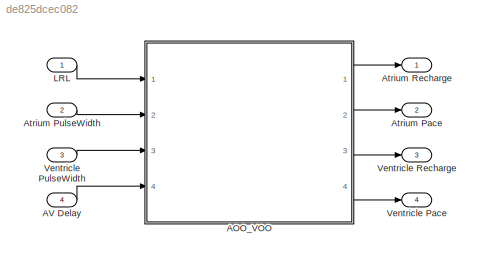
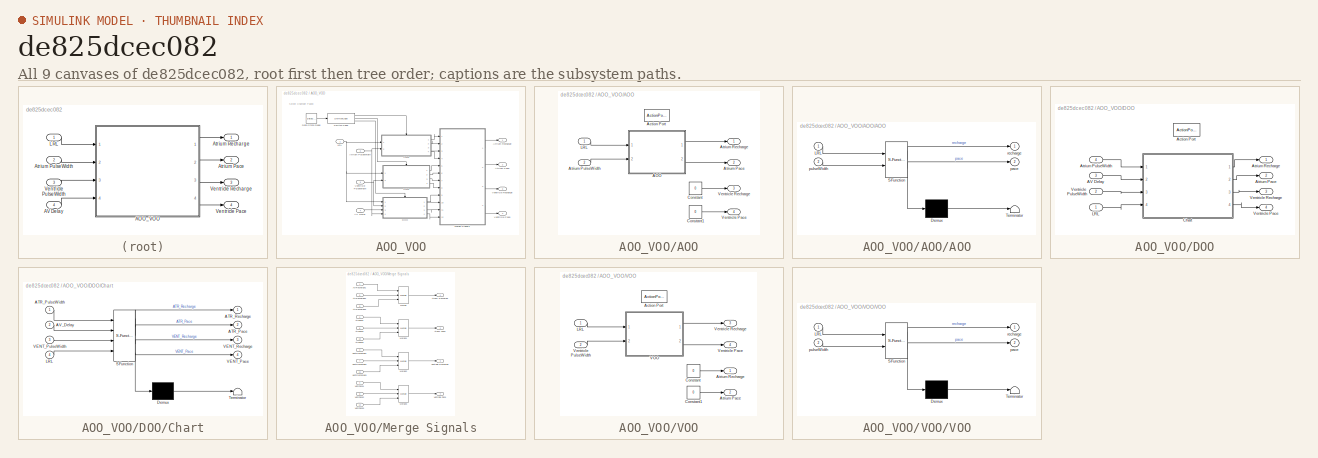
[diagram: thumbnail index - all 9 canvases of the model, root first then tree order]
MODEL slx_de825dcec082
KIND model
CONFIG AbsTol = auto
CONFIG EnableMultiTasking = on
CONFIG FixedStep = 1e-3
CONFIG MaxStep = auto
CONFIG MinStep = auto
CONFIG RelTol = 1e-3
CONFIG SampleTimeConstraint = Unconstrained
CONFIG Solver = FixedStepAuto
CONFIG SolverName = FixedStepAuto
CONFIG StartTime = 0.0
CONFIG StopTime = 10.0
BLOCK [SubSystem] AOO_VOO
  Ports = [4, 4]
  RequestExecContextInheritance = off
BLOCK [SubSystem] AOO_VOO/AOO
  Ports = [2, 4, 0, 0, 0, 0, 0, 1]
  RequestExecContextInheritance = off
  VariantControl = ATR_PACING
BLOCK [SubSystem] AOO_VOO/AOO/AOO
  ErrorFcn = Stateflow.Translate.translate
  PermitHierarchicalResolution = ExplicitOnly
  Ports = [2, 2]
  RequestExecContextInheritance = off
  SFBlockType = Chart
  TreatAsAtomicUnit = on
BLOCK [Demux] AOO_VOO/AOO/AOO/ Demux 
  Outputs = 1
  Ports = [1, 1]
BLOCK [S-Function] AOO_VOO/AOO/AOO/ SFunction 
  EnableBusSupport = on
  FunctionName = sf_sfun
  PortCounts = [2 3]
  Ports = [2, 3]
  SFcnIsStateOwnerBlock = off
  SFunctionDeploymentMode = off
  Tag = Stateflow S-Function 4
BLOCK [Terminator] AOO_VOO/AOO/AOO/ Terminator 
BLOCK [Inport] AOO_VOO/AOO/AOO/LRL
BLOCK [Outport] AOO_VOO/AOO/AOO/pace
  Port = 2
BLOCK [Inport] AOO_VOO/AOO/AOO/pulseWidth
  Port = 2
BLOCK [Outport] AOO_VOO/AOO/AOO/recharge
BLOCK [ActionPort] AOO_VOO/AOO/Action Port
  ActionPortLabel = case [ 1 ]:
BLOCK [Outport] AOO_VOO/AOO/Atrium Pace
  Port = 2
BLOCK [Inport] AOO_VOO/AOO/Atrium PulseWidth
  Port = 2
BLOCK [Outport] AOO_VOO/AOO/Atrium Recharge
BLOCK [Constant] AOO_VOO/AOO/Constant
  Value = 0
BLOCK [Constant] AOO_VOO/AOO/Constant1
  OutDataTypeStr = boolean
  Value = 0
BLOCK [Inport] AOO_VOO/AOO/LRL
BLOCK [Outport] AOO_VOO/AOO/Ventricle Pace
  Port = 4
BLOCK [Outport] AOO_VOO/AOO/Ventricle Recharge
  Port = 3
BLOCK [Inport] AOO_VOO/AV Delay
  Port = 4
BLOCK [Outport] AOO_VOO/Atrium Pace
  Port = 2
BLOCK [Inport] AOO_VOO/Atrium PulseWidth
  Port = 2
BLOCK [Outport] AOO_VOO/Atrium Recharge
BLOCK [SubSystem] AOO_VOO/DOO
  Ports = [4, 4, 0, 0, 0, 0, 0, 1]
  RequestExecContextInheritance = off
  VariantControl = DUAL_PACING
BLOCK [Inport] AOO_VOO/DOO/AV Delay
  Port = 3
BLOCK [ActionPort] AOO_VOO/DOO/Action Port
  ActionPortLabel = case [ 3 ]:
BLOCK [Outport] AOO_VOO/DOO/Atrium Pace
  Port = 2
BLOCK [Inport] AOO_VOO/DOO/Atrium PulseWidth
  Port = 4
BLOCK [Outport] AOO_VOO/DOO/Atrium Recharge
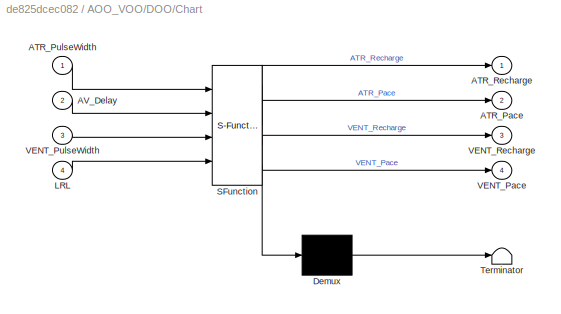
BLOCK [SubSystem] AOO_VOO/DOO/Chart
  ErrorFcn = Stateflow.Translate.translate
  PermitHierarchicalResolution = ExplicitOnly
  Ports = [4, 4]
  RequestExecContextInheritance = off
  SFBlockType = Chart
  TreatAsAtomicUnit = on
BLOCK [Demux] AOO_VOO/DOO/Chart/ Demux 
  Outputs = 1
  Ports = [1, 1]
BLOCK [S-Function] AOO_VOO/DOO/Chart/ SFunction 
  EnableBusSupport = on
  FunctionName = sf_sfun
  PortCounts = [4 5]
  Ports = [4, 5]
  SFcnIsStateOwnerBlock = off
  SFunctionDeploymentMode = off
  Tag = Stateflow S-Function 5
BLOCK [Terminator] AOO_VOO/DOO/Chart/ Terminator 
BLOCK [Outport] AOO_VOO/DOO/Chart/ATR_Pace
  Port = 2
BLOCK [Inport] AOO_VOO/DOO/Chart/ATR_PulseWidth
BLOCK [Outport] AOO_VOO/DOO/Chart/ATR_Recharge
BLOCK [Inport] AOO_VOO/DOO/Chart/AV_Delay
  Port = 2
BLOCK [Inport] AOO_VOO/DOO/Chart/LRL
  Port = 4
BLOCK [Outport] AOO_VOO/DOO/Chart/VENT_Pace
  Port = 4
BLOCK [Inport] AOO_VOO/DOO/Chart/VENT_PulseWidth
  Port = 3
BLOCK [Outport] AOO_VOO/DOO/Chart/VENT_Recharge
  Port = 3
BLOCK [Inport] AOO_VOO/DOO/LRL
BLOCK [Outport] AOO_VOO/DOO/Ventricle Pace
  Port = 4
BLOCK [Inport] AOO_VOO/DOO/Ventricle PulseWidth
  Port = 2
BLOCK [Outport] AOO_VOO/DOO/Ventricle Recharge
  Port = 3
BLOCK [DataStoreRead] AOO_VOO/Data Store Read
  DataStoreName = Paced
  Ports = [0, 1]
BLOCK [Inport] AOO_VOO/LRL
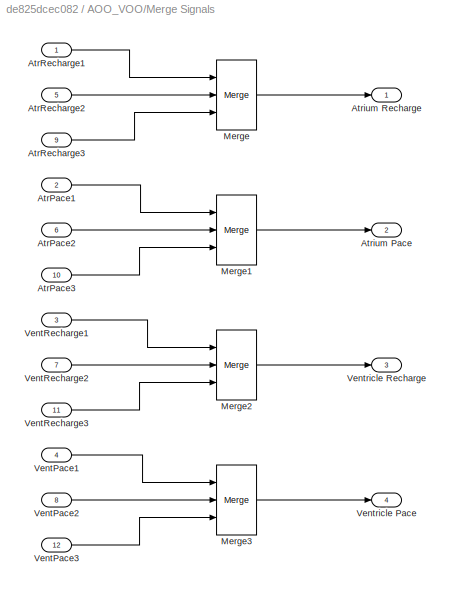
BLOCK [SubSystem] AOO_VOO/Merge Signals
  Ports = [12, 4]
  RequestExecContextInheritance = off
BLOCK [Inport] AOO_VOO/Merge Signals/AtrPace1
  Port = 2
BLOCK [Inport] AOO_VOO/Merge Signals/AtrPace2
  Port = 6
BLOCK [Inport] AOO_VOO/Merge Signals/AtrPace3
  Port = 10
BLOCK [Inport] AOO_VOO/Merge Signals/AtrRecharge1
BLOCK [Inport] AOO_VOO/Merge Signals/AtrRecharge2
  Port = 5
BLOCK [Inport] AOO_VOO/Merge Signals/AtrRecharge3
  Port = 9
BLOCK [Outport] AOO_VOO/Merge Signals/Atrium Pace
  Port = 2
BLOCK [Outport] AOO_VOO/Merge Signals/Atrium Recharge
BLOCK [Merge] AOO_VOO/Merge Signals/Merge
  Inputs = 3
  Ports = [3, 1]
BLOCK [Merge] AOO_VOO/Merge Signals/Merge1
  Inputs = 3
  Ports = [3, 1]
BLOCK [Merge] AOO_VOO/Merge Signals/Merge2
  Inputs = 3
  Ports = [3, 1]
BLOCK [Merge] AOO_VOO/Merge Signals/Merge3
  Inputs = 3
  Ports = [3, 1]
BLOCK [Inport] AOO_VOO/Merge Signals/VentPace1
  Port = 4
BLOCK [Inport] AOO_VOO/Merge Signals/VentPace2
  Port = 8
BLOCK [Inport] AOO_VOO/Merge Signals/VentPace3
  Port = 12
BLOCK [Inport] AOO_VOO/Merge Signals/VentRecharge1
  Port = 3
BLOCK [Inport] AOO_VOO/Merge Signals/VentRecharge2
  Port = 7
BLOCK [Inport] AOO_VOO/Merge Signals/VentRecharge3
  Port = 11
BLOCK [Outport] AOO_VOO/Merge Signals/Ventricle Pace
  Port = 4
BLOCK [Outport] AOO_VOO/Merge Signals/Ventricle Recharge
  Port = 3
BLOCK [SwitchCase] AOO_VOO/Switch Case
  CaseConditions = {1,2,3}
  Ports = [1, 3]
  ShowDefaultCase = off
BLOCK [SubSystem] AOO_VOO/VOO
  Ports = [2, 4, 0, 0, 0, 0, 0, 1]
  RequestExecContextInheritance = off
  VariantControl = VENT_PACING
BLOCK [ActionPort] AOO_VOO/VOO/Action Port
  ActionPortLabel = case [ 2 ]:
BLOCK [Outport] AOO_VOO/VOO/Atrium Pace
  Port = 2
BLOCK [Outport] AOO_VOO/VOO/Atrium Recharge
BLOCK [Constant] AOO_VOO/VOO/Constant
  Value = 0
BLOCK [Constant] AOO_VOO/VOO/Constant1
  OutDataTypeStr = boolean
  Value = 0
BLOCK [Inport] AOO_VOO/VOO/LRL
BLOCK [SubSystem] AOO_VOO/VOO/VOO
  ErrorFcn = Stateflow.Translate.translate
  PermitHierarchicalResolution = ExplicitOnly
  Ports = [2, 2]
  RequestExecContextInheritance = off
  SFBlockType = Chart
  TreatAsAtomicUnit = on
BLOCK [Demux] AOO_VOO/VOO/VOO/ Demux 
  Outputs = 1
  Ports = [1, 1]
BLOCK [S-Function] AOO_VOO/VOO/VOO/ SFunction 
  EnableBusSupport = on
  FunctionName = sf_sfun
  PortCounts = [2 3]
  Ports = [2, 3]
  SFcnIsStateOwnerBlock = off
  SFunctionDeploymentMode = off
  Tag = Stateflow S-Function 6
BLOCK [Terminator] AOO_VOO/VOO/VOO/ Terminator 
BLOCK [Inport] AOO_VOO/VOO/VOO/LRL
BLOCK [Outport] AOO_VOO/VOO/VOO/pace
  Port = 2
BLOCK [Inport] AOO_VOO/VOO/VOO/pulseWidth
  Port = 2
BLOCK [Outport] AOO_VOO/VOO/VOO/recharge
BLOCK [Outport] AOO_VOO/VOO/Ventricle Pace
  Port = 4
BLOCK [Inport] AOO_VOO/VOO/Ventricle PulseWidth
  Port = 2
BLOCK [Outport] AOO_VOO/VOO/Ventricle Recharge
  Port = 3
BLOCK [Outport] AOO_VOO/Ventricle Pace
  Port = 4
BLOCK [Inport] AOO_VOO/Ventricle PulseWidth
  Port = 3
BLOCK [Outport] AOO_VOO/Ventricle Recharge
  Port = 3
BLOCK [Inport] AV Delay
  OutDataTypeStr = uint16
  Port = 4
BLOCK [Outport] Atrium Pace
  Port = 2
BLOCK [Inport] Atrium PulseWidth
  OutDataTypeStr = uint16
  Port = 2
BLOCK [Outport] Atrium Recharge
BLOCK [Inport] LRL
  OutDataTypeStr = uint16
BLOCK [Outport] Ventricle Pace
  Port = 4
BLOCK [Inport] Ventricle PulseWidth
  OutDataTypeStr = uint16
  Port = 3
BLOCK [Outport] Ventricle Recharge
  Port = 3
ANNOTATION AOO_VOO: Select Chamber Paced
LINE AOO_VOO/AOO/AOO:1 -> AOO_VOO/AOO/Atrium Recharge:1
LINE AOO_VOO/AOO/AOO:2 -> AOO_VOO/AOO/Atrium Pace:1
LINE AOO_VOO/AOO/Atrium PulseWidth:1 -> AOO_VOO/AOO/AOO:2
LINE AOO_VOO/AOO/Constant1:1 -> AOO_VOO/AOO/Ventricle Pace:1
LINE AOO_VOO/AOO/Constant:1 -> AOO_VOO/AOO/Ventricle Recharge:1
LINE AOO_VOO/AOO/LRL:1 -> AOO_VOO/AOO/AOO:1
LINE AOO_VOO/AOO:1 -> AOO_VOO/Merge Signals:1
LINE AOO_VOO/AOO:2 -> AOO_VOO/Merge Signals:2
LINE AOO_VOO/AOO:3 -> AOO_VOO/Merge Signals:3
LINE AOO_VOO/AOO:4 -> AOO_VOO/Merge Signals:4
LINE AOO_VOO/AV Delay:1 -> AOO_VOO/DOO:3
NET AOO_VOO/Atrium PulseWidth:1 -> AOO_VOO/AOO:2, AOO_VOO/DOO:4
LINE AOO_VOO/DOO/AV Delay:1 -> AOO_VOO/DOO/Chart:2
LINE AOO_VOO/DOO/Atrium PulseWidth:1 -> AOO_VOO/DOO/Chart:1
LINE AOO_VOO/DOO/Chart:1 -> AOO_VOO/DOO/Atrium Recharge:1
LINE AOO_VOO/DOO/Chart:2 -> AOO_VOO/DOO/Atrium Pace:1
LINE AOO_VOO/DOO/Chart:3 -> AOO_VOO/DOO/Ventricle Recharge:1
LINE AOO_VOO/DOO/Chart:4 -> AOO_VOO/DOO/Ventricle Pace:1
LINE AOO_VOO/DOO/LRL:1 -> AOO_VOO/DOO/Chart:4
LINE AOO_VOO/DOO/Ventricle PulseWidth:1 -> AOO_VOO/DOO/Chart:3
LINE AOO_VOO/DOO:1 -> AOO_VOO/Merge Signals:9
LINE AOO_VOO/DOO:2 -> AOO_VOO/Merge Signals:10
LINE AOO_VOO/DOO:3 -> AOO_VOO/Merge Signals:11
LINE AOO_VOO/DOO:4 -> AOO_VOO/Merge Signals:12
LINE AOO_VOO/Data Store Read:1 -> AOO_VOO/Switch Case:1
NET AOO_VOO/LRL:1 -> AOO_VOO/AOO:1, AOO_VOO/DOO:1, AOO_VOO/VOO:1
LINE AOO_VOO/Merge Signals/AtrPace1:1 -> AOO_VOO/Merge Signals/Merge1:1
LINE AOO_VOO/Merge Signals/AtrPace2:1 -> AOO_VOO/Merge Signals/Merge1:2
LINE AOO_VOO/Merge Signals/AtrPace3:1 -> AOO_VOO/Merge Signals/Merge1:3
LINE AOO_VOO/Merge Signals/AtrRecharge1:1 -> AOO_VOO/Merge Signals/Merge:1
LINE AOO_VOO/Merge Signals/AtrRecharge2:1 -> AOO_VOO/Merge Signals/Merge:2
LINE AOO_VOO/Merge Signals/AtrRecharge3:1 -> AOO_VOO/Merge Signals/Merge:3
LINE AOO_VOO/Merge Signals/Merge1:1 -> AOO_VOO/Merge Signals/Atrium Pace:1
LINE AOO_VOO/Merge Signals/Merge2:1 -> AOO_VOO/Merge Signals/Ventricle Recharge:1
LINE AOO_VOO/Merge Signals/Merge3:1 -> AOO_VOO/Merge Signals/Ventricle Pace:1
LINE AOO_VOO/Merge Signals/Merge:1 -> AOO_VOO/Merge Signals/Atrium Recharge:1
LINE AOO_VOO/Merge Signals/VentPace1:1 -> AOO_VOO/Merge Signals/Merge3:1
LINE AOO_VOO/Merge Signals/VentPace2:1 -> AOO_VOO/Merge Signals/Merge3:2
LINE AOO_VOO/Merge Signals/VentPace3:1 -> AOO_VOO/Merge Signals/Merge3:3
LINE AOO_VOO/Merge Signals/VentRecharge1:1 -> AOO_VOO/Merge Signals/Merge2:1
LINE AOO_VOO/Merge Signals/VentRecharge2:1 -> AOO_VOO/Merge Signals/Merge2:2
LINE AOO_VOO/Merge Signals/VentRecharge3:1 -> AOO_VOO/Merge Signals/Merge2:3
LINE AOO_VOO/Merge Signals:1 -> AOO_VOO/Atrium Recharge:1
LINE AOO_VOO/Merge Signals:2 -> AOO_VOO/Atrium Pace:1
LINE AOO_VOO/Merge Signals:3 -> AOO_VOO/Ventricle Recharge:1
LINE AOO_VOO/Merge Signals:4 -> AOO_VOO/Ventricle Pace:1
LINE AOO_VOO/Switch Case:1 -> AOO_VOO/AOO:ifaction
LINE AOO_VOO/Switch Case:2 -> AOO_VOO/VOO:ifaction
LINE AOO_VOO/Switch Case:3 -> AOO_VOO/DOO:ifaction
LINE AOO_VOO/VOO/Constant1:1 -> AOO_VOO/VOO/Atrium Pace:1
LINE AOO_VOO/VOO/Constant:1 -> AOO_VOO/VOO/Atrium Recharge:1
LINE AOO_VOO/VOO/LRL:1 -> AOO_VOO/VOO/VOO:1
LINE AOO_VOO/VOO/VOO:1 -> AOO_VOO/VOO/Ventricle Recharge:1
LINE AOO_VOO/VOO/VOO:2 -> AOO_VOO/VOO/Ventricle Pace:1
LINE AOO_VOO/VOO/Ventricle PulseWidth:1 -> AOO_VOO/VOO/VOO:2
LINE AOO_VOO/VOO:1 -> AOO_VOO/Merge Signals:5
LINE AOO_VOO/VOO:2 -> AOO_VOO/Merge Signals:6
LINE AOO_VOO/VOO:3 -> AOO_VOO/Merge Signals:7
LINE AOO_VOO/VOO:4 -> AOO_VOO/Merge Signals:8
NET AOO_VOO/Ventricle PulseWidth:1 -> AOO_VOO/DOO:2, AOO_VOO/VOO:2
LINE AOO_VOO:1 -> Atrium Recharge:1
LINE AOO_VOO:2 -> Atrium Pace:1
LINE AOO_VOO:3 -> Ventricle Recharge:1
LINE AOO_VOO:4 -> Ventricle Pace:1
LINE AV Delay:1 -> AOO_VOO:4
LINE Atrium PulseWidth:1 -> AOO_VOO:2
LINE LRL:1 -> AOO_VOO:1
LINE Ventricle PulseWidth:1 -> AOO_VOO:3
note: NET lines group one-source signal fan-out (src -> all destinations, sorted); 1:1 wires keep LINE
CHART AOO_VOO/VOO/VOO states=7 transitions=4
  STATE_LABEL 'Recharge_Init\nentry:\npace = false;\nrecharge = 1;'
  STATE_LABEL 'Sets up for charging C22\nand discharging C21.'
  STATE_LABEL 'Recharge phase split into two to\nensure correct pin activation order.'
  STATE_LABEL 'Pace\nentry:\npace = true;\nrecharge = 0;'
  STATE_LABEL 'Recharge\nentry:\nrecharge = 2;'
  STATE_LABEL 'Starts charging of C22\nand discharging of C21.'
  STATE_LABEL 'Paces the heart by discharging\nC22 into the heart.'
CHART AOO_VOO/AOO/AOO states=7 transitions=4
  STATE_LABEL 'Recharge_Init\nentry:\npace = false;\nrecharge = 1;'
  STATE_LABEL 'Sets up for charging C22\nand discharging C21.'
  STATE_LABEL 'Recharge phase split into two to\nensure correct pin activation order.'
  STATE_LABEL 'Pace\nentry:\npace = true;\nrecharge = 0;'
  STATE_LABEL 'Recharge\nentry:\nrecharge = 2;'
  STATE_LABEL 'Starts charging of C22\nand discharging of C21.'
  STATE_LABEL 'Paces the heart by discharging\nC22 into the heart.'
CHART AOO_VOO/DOO/Chart states=20 transitions=11
  STATE_LABEL 'Recharge phase split into two to\nensure correct pin activation order.'
  STATE_LABEL 'Paces the Atrium by discharging\nC22 into the heart.'
  STATE_LABEL 'Sets up for charging C22\nand discharging C21.'
  STATE_LABEL 'Starts charging of C22\nand discharging of C21.'
  STATE_LABEL 'VENT_Discharge\nentry:\nVENT_Recharge=2;'
  STATE_LABEL 'ATR_Recharge\nentry:\nATR_Recharge=2;'
  STATE_LABEL 'ATR_Pace\nentry:\nATR_Pace=true;\nATR_Recharge=0;'
  STATE_LABEL 'ATR_Discharge_Init\nentry:\nATR_Pace=false;\nATR_Recharge=1;\n'
  STATE_LABEL 'ATR_Recharge_Init\nentry:\nATR_Recharge=1;\nVENT_Recharge=0;\nATR_Pace=false;'
  STATE_LABEL 'The Ventricle needs to be discharged\n before the Atrium can be paced'
  STATE_LABEL 'The atrium needs to be discharged\n before the Ventricle can be paced'
  STATE_LABEL 'VENT_Recharge\nentry:\nVENT_Recharge=2;\n'
  STATE_LABEL 'VENT_Recharge_init\nentry:\nVENT_Pace=false;\nVENT_Recharge=1;\nATR_Recharge=0;\n'
  STATE_LABEL 'VENT_Pace\nentry:\nVENT_Pace=true;\nVENT_Recharge=0;\n'
  STATE_LABEL 'VENT_Discharge_Init\nentry:\nVENT_Recharge=1;\nVENT_Pace=false;'
  STATE_LABEL 'ATR_Discharge\nentry:\nATR_Recharge=2;'
  STATE_LABEL 'Starts charging of C22\nand discharging of C21.'
  STATE_LABEL 'Sets up for charging C22\nand discharging C21.'
  STATE_LABEL 'Paces the Ventricle by discharging\nC22 into the heart.'
  STATE_LABEL 'Recharge phase split into two to\nensure correct pin activation order.'
CHART  states=0 transitions=0
CHART  states=0 transitions=0
CHART  states=0 transitions=0
